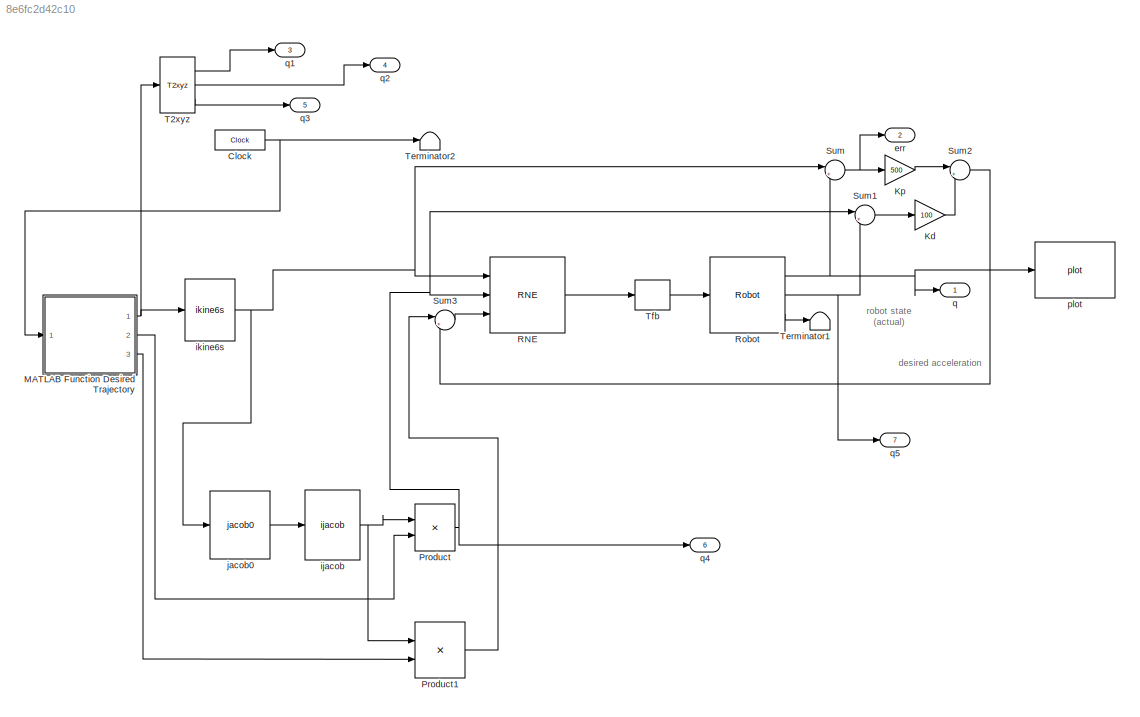
MODEL slx_8e6fc2d42c10
KIND model
CONFIG PreLoadFcn = puma560\np560 = nofriction(p560);
BLOCK [Clock] Clock
  DisplayTime = on
BLOCK [Gain] Kd
  Gain = 100
BLOCK [Gain] Kp
  Gain = 500
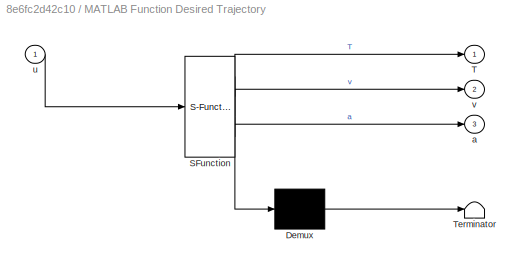
BLOCK [SubSystem] MATLAB Function Desired Trajectory
  ErrorFcn = Stateflow.Translate.translate
  PermitHierarchicalResolution = ExplicitOnly
  Ports = [1, 3]
  RequestExecContextInheritance = off
  SFBlockType = MATLAB Function
  TreatAsAtomicUnit = on
BLOCK [Demux] MATLAB Function Desired Trajectory/ Demux 
  Outputs = 1
  Ports = [1, 1]
BLOCK [S-Function] MATLAB Function Desired Trajectory/ SFunction 
  EnableBusSupport = on
  FunctionName = sf_sfun
  PortCounts = [1 4]
  Ports = [1, 4]
  Tag = Stateflow S-Function sl_ctorqueTraj 2
BLOCK [Terminator] MATLAB Function Desired Trajectory/ Terminator 
BLOCK [Outport] MATLAB Function Desired Trajectory/T
  IconDisplay = Port number
BLOCK [Outport] MATLAB Function Desired Trajectory/a
  IconDisplay = Port number
  Port = 3
BLOCK [Inport] MATLAB Function Desired Trajectory/u
  IconDisplay = Port number
BLOCK [Outport] MATLAB Function Desired Trajectory/v
  IconDisplay = Port number
  Port = 2
BLOCK [Product] Product
  InputSameDT = off
  Multiplication = Matrix(*)
  OutDataTypeStr = Inherit: Inherit via internal rule
  Ports = [2, 1]
  RndMeth = Floor
  SaturateOnIntegerOverflow = off
BLOCK [Product] Product1
  InputSameDT = off
  Multiplication = Matrix(*)
  OutDataTypeStr = Inherit: Inherit via internal rule
  Ports = [2, 1]
  RndMeth = Floor
  SaturateOnIntegerOverflow = off
BLOCK [Reference] RNE  REF=roblocks/Dynamics/RNE  (lib defined in mdl_2a292b13c81b, mdl_69400f8cfe22, +12 more)
  Ports = [3, 1]
  SourceBlock = roblocks/Dynamics/RNE
  grav = [0 0 9.81]
  robot = myRobot
BLOCK [Reference] Robot  REF=roblocks/Dynamics/Robot  (lib defined in mdl_2a292b13c81b, mdl_69400f8cfe22, +12 more)
  Ports = [1, 3]
  SourceBlock = roblocks/Dynamics/Robot
  q0 = [2.9083    1.6809   -0.1451     -0.9350   -0.9404   -2.9065]
  robot = myRobot
BLOCK [Sum] Sum
  IconShape = round
  Inputs = |+-
  Ports = [2, 1]
BLOCK [Sum] Sum1
  IconShape = round
  Inputs = |+-
  Ports = [2, 1]
BLOCK [Sum] Sum2
  IconShape = round
  Inputs = |++
  Ports = [2, 1]
BLOCK [Sum] Sum3
  IconShape = round
  Inputs = |++
  Ports = [2, 1]
BLOCK [Reference] T2xyz  REF=roblocks/Transform Conversion/T2xyz  (lib defined in mdl_2a292b13c81b, mdl_69400f8cfe22, +12 more)
  Ports = [1, 3]
  SourceBlock = roblocks/Transform Conversion/T2xyz
BLOCK [Terminator] Terminator1
BLOCK [Terminator] Terminator2
BLOCK [ZeroOrderHold] Tfb
  SampleTime = 0.01
BLOCK [Outport] err
  IconDisplay = Port number
  Port = 2
BLOCK [Reference] ijacob  REF=roblocks/Kinematics/ijacob  (lib defined in mdl_2a292b13c81b, mdl_69400f8cfe22, +12 more)
  Ports = [1, 1]
  SourceBlock = roblocks/Kinematics/ijacob
BLOCK [Reference] ikine6s  REF=roblocks/Kinematics/ikine6s  (lib defined in mdl_2a292b13c81b, mdl_69400f8cfe22, +12 more)
  Ports = [1, 1]
  SourceBlock = roblocks/Kinematics/ikine6s
  conf = 'luf'
  robot = myRobot
BLOCK [Reference] jacob0   REF=roblocks/Kinematics/jacob0  (lib defined in mdl_2a292b13c81b, mdl_69400f8cfe22, +12 more)

  Ports = [1, 1]
  SourceBlock = roblocks/Kinematics/jacob0
  robot = myRobot
BLOCK [Reference] plot  REF=roblocks/Robot Graphics/plot  (lib defined in mdl_2a292b13c81b, mdl_69400f8cfe22, +12 more)
  Commented = on
  Ports = [1]
  SourceBlock = roblocks/Robot Graphics/plot
  fps = 25
  holdplot = on
  robot = myRobot
BLOCK [Outport] q
  IconDisplay = Port number
BLOCK [Outport] q1
  IconDisplay = Port number
  Port = 3
BLOCK [Outport] q2
  IconDisplay = Port number
  Port = 4
BLOCK [Outport] q3
  IconDisplay = Port number
  Port = 5
BLOCK [Outport] q4
  IconDisplay = Port number
  Port = 6
BLOCK [Outport] q5
  IconDisplay = Port number
  Port = 7
ANNOTATION (root): desired acceleration
ANNOTATION (root): robot state (actual)
NET Clock:1 -> MATLAB Function Desired Trajectory:1, Terminator2:1
LINE Kd:1 -> Sum2:2
LINE Kp:1 -> Sum2:1
NET MATLAB Function Desired Trajectory:1 -> T2xyz:1, ikine6s:1
LINE MATLAB Function Desired Trajectory:2 -> Product:2
LINE MATLAB Function Desired Trajectory:3 -> Product1:2
LINE Product1:1 -> Sum3:1
NET Product:1 -> RNE:2, Sum1:1, q4:1
LINE RNE:1 -> Tfb:1
NET Robot:1 -> Sum:2, plot:1, q:1
NET Robot:2 -> Sum1:2, q5:1
LINE Robot:3 -> Terminator1:1
LINE Sum1:1 -> Kd:1
LINE Sum2:1 -> Sum3:2
LINE Sum3:1 -> RNE:3
NET Sum:1 -> Kp:1, err:1
LINE T2xyz:1 -> q1:1
LINE T2xyz:2 -> q2:1
LINE T2xyz:3 -> q3:1
LINE Tfb:1 -> Robot:1
NET ijacob:1 -> Product1:1, Product:1
NET ikine6s:1 -> RNE:1, Sum:1, jacob0 :1
LINE jacob0 :1 -> ijacob:1
note: NET lines group one-source signal fan-out (src -> all destinations, sorted); 1:1 wires keep LINE
